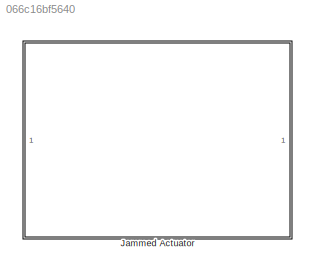
MODEL slx_066c16bf5640
KIND model
CONFIG AbsTol = auto
CONFIG EnableMultiTasking = off
CONFIG FixedStep = auto
CONFIG MaxStep = auto
CONFIG MinStep = auto
CONFIG RelTol = 1e-3
CONFIG SampleTimeConstraint = Unconstrained
CONFIG Solver = VariableStepAuto
CONFIG SolverName = VariableStepAuto
CONFIG StartTime = 0.0
CONFIG StopTime = 10.0
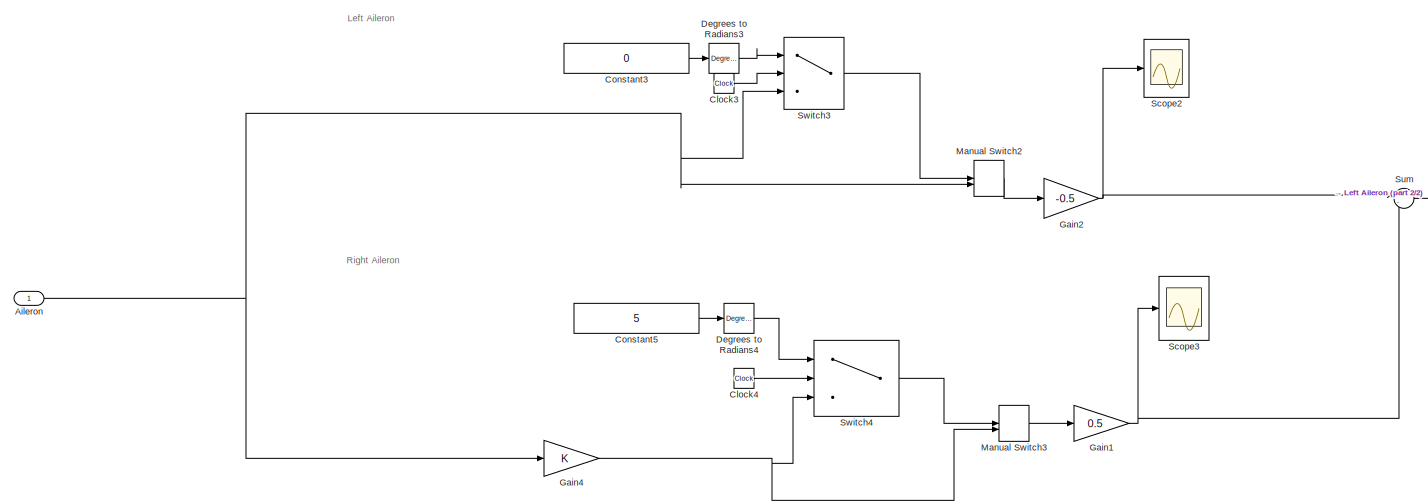
[diagram: Jammed Actuator  - part 1/2, most of the canvas]
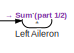
[diagram: Jammed Actuator  - part 2/2, middle right region]
BLOCK [SubSystem] Jammed Actuator 
  Ports = [1, 1]
  RequestExecContextInheritance = off
BLOCK [Inport] Jammed Actuator /Aileron
  IconDisplay = Port number
BLOCK [Clock] Jammed Actuator /Clock3
BLOCK [Clock] Jammed Actuator /Clock4
BLOCK [Constant] Jammed Actuator /Constant3
  Value = 0
BLOCK [Constant] Jammed Actuator /Constant5
  Value = 5
BLOCK [Reference] Jammed Actuator /Degrees to Radians3  REF=simulink_extras/Transformations/Degrees to
Radians
  Ports = [1, 1]
  SourceBlock = simulink_extras/Transformations/Degrees to\nRadians
  SourceProductBaseCode = SL
  SourceProductName = Simulink
  SourceType = DegreesToRadians
BLOCK [Reference] Jammed Actuator /Degrees to Radians4  REF=simulink_extras/Transformations/Degrees to
Radians
  Ports = [1, 1]
  SourceBlock = simulink_extras/Transformations/Degrees to\nRadians
  SourceProductBaseCode = SL
  SourceProductName = Simulink
  SourceType = DegreesToRadians
BLOCK [Gain] Jammed Actuator /Gain1
  Gain = 0.5
  OutDataTypeStr = Inherit: Inherit via internal rule
  ParamDataTypeStr = Inherit: Inherit via internal rule
  SaturateOnIntegerOverflow = off
BLOCK [Gain] Jammed Actuator /Gain2
  Gain = -0.5
  OutDataTypeStr = Inherit: Inherit via internal rule
  ParamDataTypeStr = Inherit: Inherit via internal rule
  SaturateOnIntegerOverflow = off
BLOCK [Gain] Jammed Actuator /Gain4
  OutDataTypeStr = Inherit: Inherit via internal rule
  ParamDataTypeStr = Inherit: Inherit via internal rule
  SaturateOnIntegerOverflow = off
BLOCK [Outport] Jammed Actuator /Left Aileron
  IconDisplay = Port number
BLOCK [ManualSwitch] Jammed Actuator /Manual Switch2
  CurrentSetting = 0
BLOCK [ManualSwitch] Jammed Actuator /Manual Switch3
  CurrentSetting = 0
BLOCK [Scope] Jammed Actuator /Scope2
  Floating = off
  NumInputPorts = 1
  Ports = [1]
  ScopeSpecificationString = Simulink.scopes.TimeScopeBlockCfg('CurrentConfiguration', extmgr.ConfigurationSet(extmgr.Configuration('Core','General UI',true),extmgr.Configuration('Core','Source UI',true),extmgr.Configuration('Sources','WiredSimulink',true,'DataLoggingVariableName','ScopeData2'),extmgr.Configuration('Visuals','Time Domain',true,'SerializedDisplays',{struct('MinYLimReal','-1.00000','MaxYLimReal','1.00000','YLab...<+1364ch>
BLOCK [Scope] Jammed Actuator /Scope3
  Floating = off
  NumInputPorts = 1
  Ports = [1]
  ScopeSpecificationString = Simulink.scopes.TimeScopeBlockCfg('CurrentConfiguration', extmgr.ConfigurationSet(extmgr.Configuration('Core','General UI',true),extmgr.Configuration('Core','Source UI',true),extmgr.Configuration('Sources','WiredSimulink',true,'DataLoggingVariableName','ScopeData3'),extmgr.Configuration('Visuals','Time Domain',true,'SerializedDisplays',{struct('MinYLimReal','-1.3415','MaxYLimReal','0.89072','YLabe...<+1369ch>
BLOCK [Sum] Jammed Actuator /Sum
  IconShape = round
  InputSameDT = off
  Inputs = |-+
  OutDataTypeStr = Inherit: Inherit via internal rule
  Ports = [2, 1]
  SaturateOnIntegerOverflow = off
BLOCK [Switch] Jammed Actuator /Switch3
  Criteria = u2 > Threshold
  InputSameDT = off
  SaturateOnIntegerOverflow = off
  Threshold = 119
BLOCK [Switch] Jammed Actuator /Switch4
  Criteria = u2 > Threshold
  InputSameDT = off
  SaturateOnIntegerOverflow = off
  Threshold = 119
ANNOTATION Jammed Actuator : Left Aileron
ANNOTATION Jammed Actuator : Right Aileron
NET Jammed Actuator /Aileron:1 -> Jammed Actuator /Gain4:1, Jammed Actuator /Manual Switch2:2, Jammed Actuator /Switch3:3
LINE Jammed Actuator /Clock3:1 -> Jammed Actuator /Switch3:2
LINE Jammed Actuator /Clock4:1 -> Jammed Actuator /Switch4:2
LINE Jammed Actuator /Constant3:1 -> Jammed Actuator /Degrees to Radians3:1
LINE Jammed Actuator /Constant5:1 -> Jammed Actuator /Degrees to Radians4:1
LINE Jammed Actuator /Degrees to Radians3:1 -> Jammed Actuator /Switch3:1
LINE Jammed Actuator /Degrees to Radians4:1 -> Jammed Actuator /Switch4:1
NET Jammed Actuator /Gain1:1 -> Jammed Actuator /Scope3:1, Jammed Actuator /Sum:2
NET Jammed Actuator /Gain2:1 -> Jammed Actuator /Scope2:1, Jammed Actuator /Sum:1
NET Jammed Actuator /Gain4:1 -> Jammed Actuator /Manual Switch3:2, Jammed Actuator /Switch4:3
LINE Jammed Actuator /Manual Switch2:1 -> Jammed Actuator /Gain2:1
LINE Jammed Actuator /Manual Switch3:1 -> Jammed Actuator /Gain1:1
LINE Jammed Actuator /Sum:1 -> Jammed Actuator /Left Aileron:1
LINE Jammed Actuator /Switch3:1 -> Jammed Actuator /Manual Switch2:1
LINE Jammed Actuator /Switch4:1 -> Jammed Actuator /Manual Switch3:1
note: NET lines group one-source signal fan-out (src -> all destinations, sorted); 1:1 wires keep LINE
